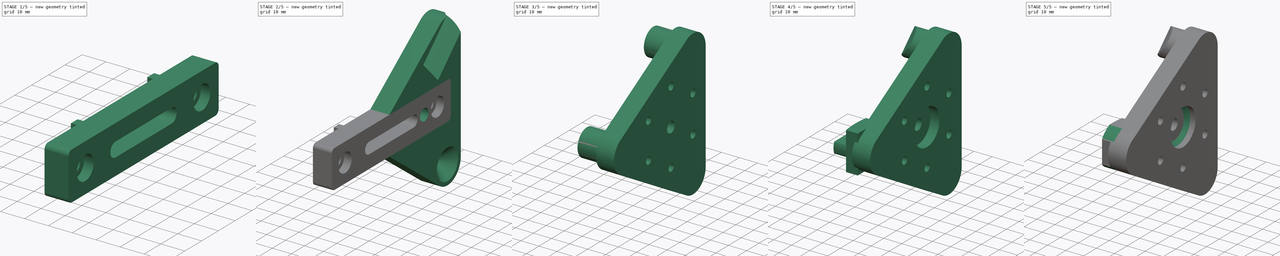
[diagram: build sequence overview — one tinted view per stage of 5, left to right]
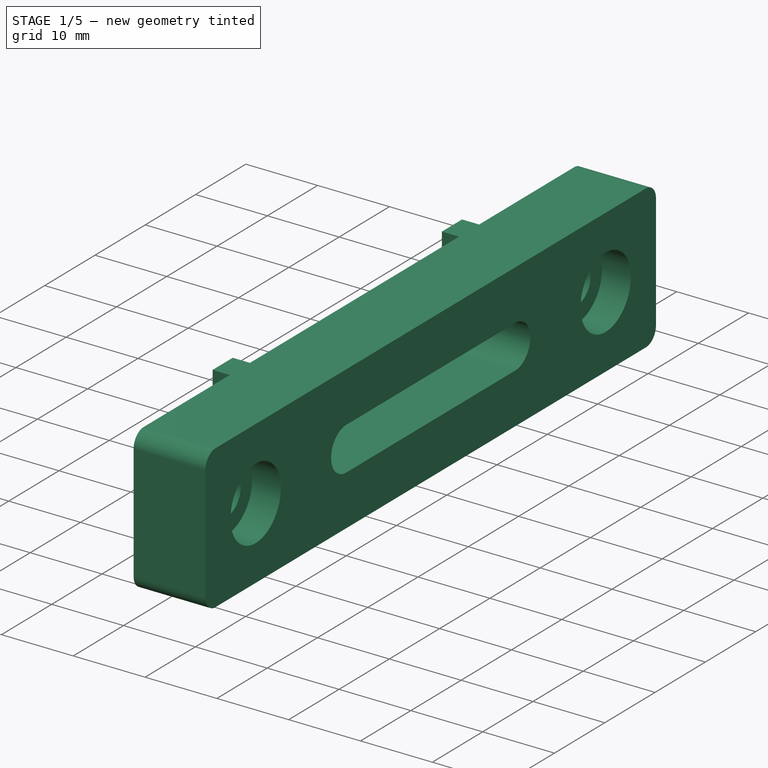
[diagram: stage 1 of 5 — iso view after this stage's code; geometry added in this stage tinted green]
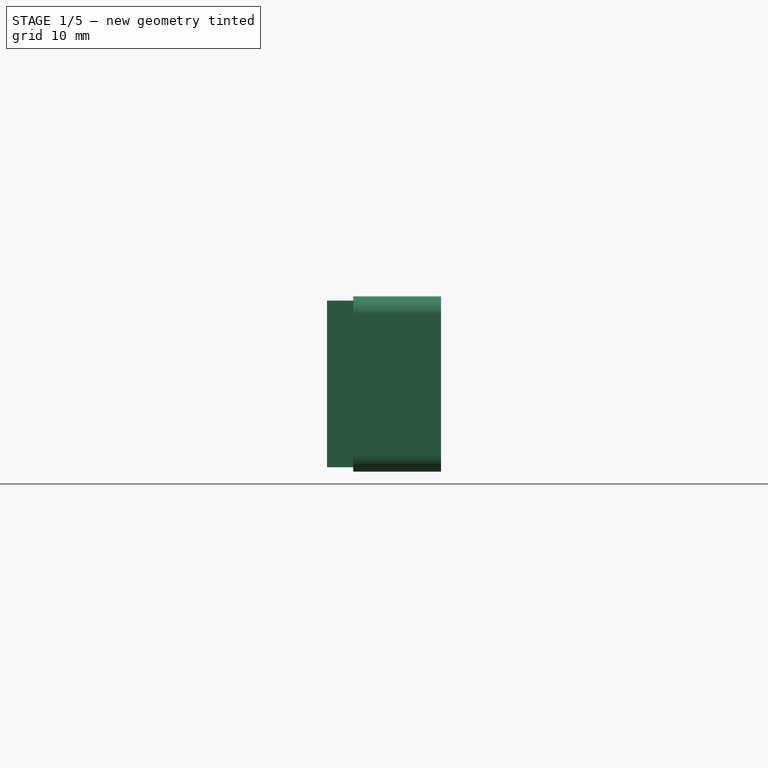
[diagram: stage 1 of 5 — front view after this stage's code; geometry added in this stage tinted green]
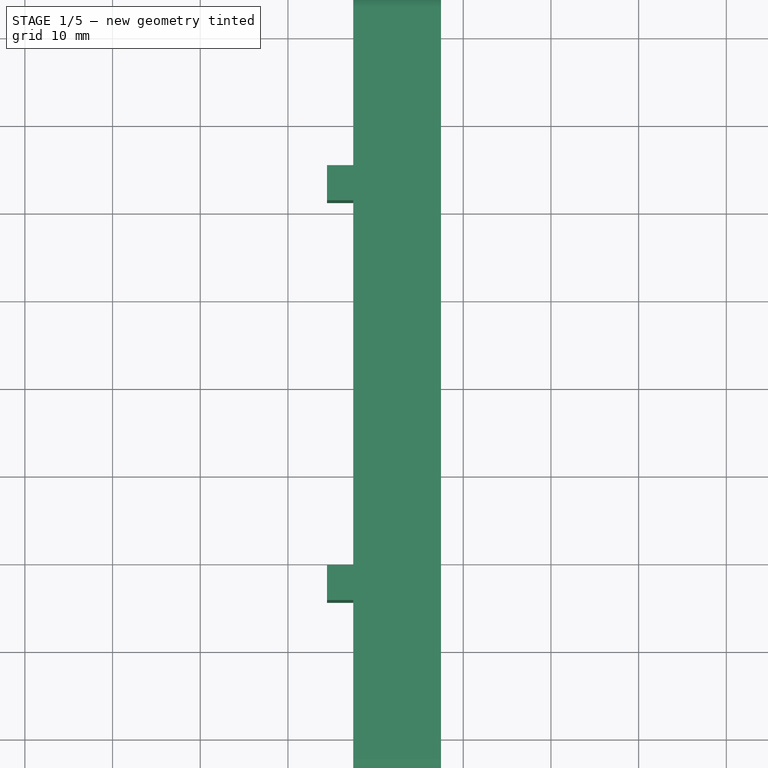
[diagram: stage 1 of 5 — top view after this stage's code; geometry added in this stage tinted green]
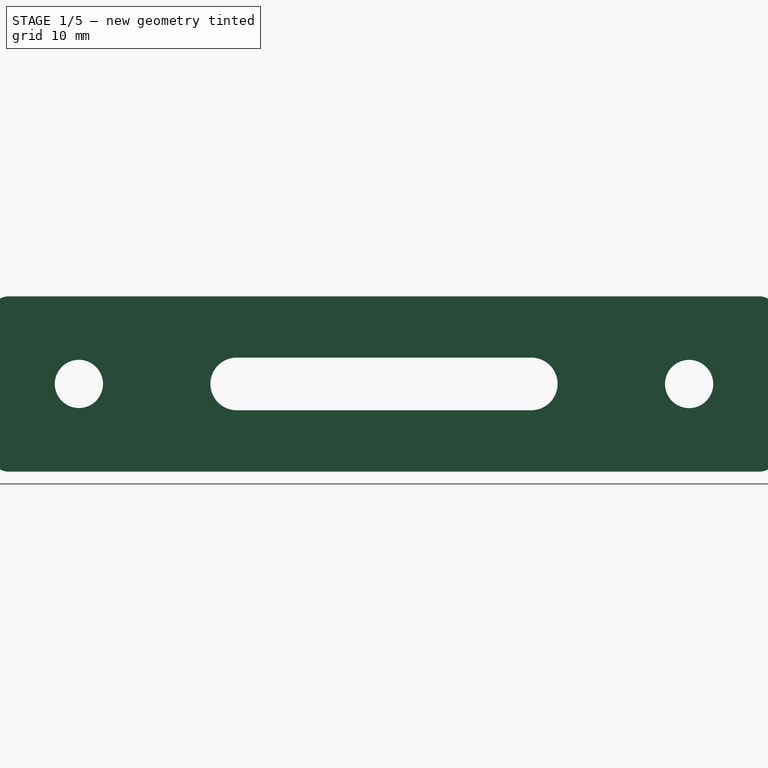
[diagram: stage 1 of 5 — right view after this stage's code; geometry added in this stage tinted green]
FCSTD DOCUMENT  (FreeCAD 0.20R29177 (Git))
Label: AP_011a_toolHolder_GA3Dtech
License: All rights reserved
LicenseURL: http://en.wikipedia.org/wiki/All_rights_reserved
objects: Sketcher::SketchObject×12, PartDesign::Pocket×8, PartDesign::Pad×6, PartDesign::Body×3, PartDesign::Fillet×2, PartDesign::Line×2, PartDesign::Plane×2, PartDesign::SubShapeBinder×1, PartDesign::Hole×1, PartDesign::Groove×1, PartDesign::ShapeBinder×1, Part::Cut×1, PartDesign::FeatureBase×1, PartDesign::Chamfer×1
note: 61 computed .brp shape members not serialized (recipe doc carries the construction recipe); baked Part::Feature solids carry a one-line shape summary decoded from their .brp

FEATURE [PartDesign::SubShapeBinder] Binder
  BindCopyOnChange = 0
  BindMode = 2
  ClaimChildren = false
  Context = -> Body [Binder.]
  Fuse = false
  MakeFace = true
  OffsetFill = false
  OffsetIntersection = false
  OffsetJoinType = 0
  OffsetOpenResult = false
  PartialLoad = false
  Refine = true
  Relative = true
  _Version = 2
FEATURE [Sketcher::SketchObject] Sketch
  ExternalGeometry = -> [Binder]
  FullyConstrained = true
  MapMode = 5
  Placement = pos=(237.459,0,0) rot=(0.57735,0.57735,0.57735;2.0944rad)
  Support = -> [Binder]
  sketch-geometry (8):
    g0: LineSegment StartX=45.225 StartY=199.849 StartZ=0 EndX=-44.3729 EndY=199.849 EndZ=0
    g1: LineSegment StartX=-44.3729 StartY=199.849 StartZ=0 EndX=-44.3729 EndY=179.849 EndZ=0
    g2: LineSegment StartX=-44.3729 StartY=179.849 StartZ=0 EndX=45.225 EndY=179.849 EndZ=0
    g3: LineSegment StartX=45.225 StartY=179.849 StartZ=0 EndX=45.225 EndY=199.849 EndZ=0
    g4: ArcOfCircle CenterX=-16.3729 CenterY=189.858 CenterZ=0 NormalX=0 NormalY=0 NormalZ=1 AngleXU=0 Radius=3 StartAngle=1.5708 EndAngle=4.71239
    g5: ArcOfCircle CenterX=17.225 CenterY=189.858 CenterZ=0 NormalX=0 NormalY=0 NormalZ=1 AngleXU=0 Radius=3 StartAngle=4.71239 EndAngle=7.85398
    g6: LineSegment StartX=-16.3729 StartY=186.858 StartZ=0 EndX=17.225 EndY=186.858 EndZ=0
    g7: LineSegment StartX=-16.3729 StartY=192.858 StartZ=0 EndX=17.225 EndY=192.858 EndZ=0
  constraints (22):
    c: Coincident(g0,g1)
    c: Coincident(g1,g2)
    c: Coincident(g2,g3)
    c: Coincident(g3,g0)
    c: Horizontal(g0)
    c: Horizontal(g2)
    c: Vertical(g1)
    c: Vertical(g3)
    c: Vertical(g1,g-3)
    c: Horizontal(g-6,g0)
    c: Horizontal(g2,g-4)
    c: Vertical(g-5,g0)
    c: Tangent(g4,g7) = 1.5708
    c: Tangent(g4,g6) = -1.5708
    c: Tangent(g6,g5) = -1.5708
    c: Tangent(g7,g5) = 1.5708
    c: Horizontal(g6)
    c: Equal(g4,g5)
    c: Horizontal(g4,g-7)
    c: Radius(g5) = 3
    c: DistanceX(g-7,g4) = 18
    c: DistanceX(g5,g-8) = 18
FEATURE [PartDesign::Pad] Pad
  Direction = (1,1,1)
  Length = 10
  Length2 = 100
  Profile = -> Sketch
  Type = 0
FEATURE [Sketcher::SketchObject] Sketch001
  ExternalGeometry = -> [Binder]
  FullyConstrained = true
  MapMode = 5
  Placement = pos=(237.459,0,0) rot=(0.57735,-0.57735,-0.57735;2.0944rad)
  Support = -> [Pad]
  sketch-geometry (8):
    g0: LineSegment StartX=-25.225 StartY=199.349 StartZ=0 EndX=-21.225 EndY=199.349 EndZ=0
    g1: LineSegment StartX=-21.225 StartY=199.349 StartZ=0 EndX=-21.225 EndY=180.349 EndZ=0
    g2: LineSegment StartX=-21.225 StartY=180.349 StartZ=0 EndX=-25.225 EndY=180.349 EndZ=0
    g3: LineSegment StartX=-25.225 StartY=180.349 StartZ=0 EndX=-25.225 EndY=199.349 EndZ=0
    g4: LineSegment StartX=24.3729 StartY=199.358 StartZ=0 EndX=20.3729 EndY=199.358 EndZ=0
    g5: LineSegment StartX=20.3729 StartY=199.358 StartZ=0 EndX=20.3729 EndY=180.358 EndZ=0
    g6: LineSegment StartX=20.3729 StartY=180.358 StartZ=0 EndX=24.3729 EndY=180.358 EndZ=0
    g7: LineSegment StartX=24.3729 StartY=180.358 StartZ=0 EndX=24.3729 EndY=199.358 EndZ=0
  constraints (20):
    c: Coincident(g0,g1)
    c: Coincident(g1,g2)
    c: Coincident(g2,g3)
    c: Coincident(g3,g0)
    c: Horizontal(g0)
    c: Horizontal(g2)
    c: Vertical(g1)
    c: Coincident(g0,g-3)
    c: Coincident(g-5,g2)
    c: DistanceX(g0,g0) = 4
    c: Coincident(g4,g5)
    c: Coincident(g5,g6)
    c: Coincident(g6,g7)
    c: Coincident(g7,g4)
    c: Horizontal(g4)
    c: Horizontal(g6)
    c: Vertical(g5)
    c: Coincident(g4,g-4)
    c: Coincident(g6,g-6)
    c: DistanceX(g6,g6) = 4
FEATURE [PartDesign::Pad] Pad001
  BaseFeature = -> Pad
  Direction = (1,1,1)
  Length = 3
  Length2 = 100
  Profile = -> Sketch001
  Type = 0
FEATURE [Sketcher::SketchObject] Sketch002
  ExternalGeometry = -> [Binder]
  FullyConstrained = false
  MapMode = 5
  Placement = pos=(247.459,0,0) rot=(0.57735,0.57735,0.57735;2.0944rad)
  Support = -> [Pad001]
  sketch-geometry (2):
    g0: Circle CenterX=-34.3729 CenterY=189.858 CenterZ=0 NormalX=0 NormalY=0 NormalZ=1 AngleXU=0 Radius=3.81493
    g1: Circle CenterX=35.225 CenterY=189.849 CenterZ=0 NormalX=0 NormalY=0 NormalZ=1 AngleXU=0 Radius=3.1654
  constraints (2):
    c: Coincident(g0,g-3)
    c: Coincident(g1,g-4)
FEATURE [PartDesign::Hole] Hole
  BaseFeature = -> Pad001
  CustomThreadClearance = 0
  Depth = 25
  DepthType = 0
  Diameter = 5.5
  DrillForDepth = false
  DrillPoint = 1
  DrillPointAngle = 118
  HoleCutCountersinkAngle = 90
  HoleCutCustomValues = false
  HoleCutDepth = 4
  HoleCutDiameter = 10
  HoleCutType = 6
  ModelThread = false
  Profile = -> Sketch002
  Tapered = false
  TaperedAngle = 90
  ThreadClass = 0
  ThreadDepth = 23.5
  ThreadDepthType = 0
  ThreadDirection = 0
  ThreadFit = 0
  ThreadSize = 13
  ThreadType = 1
  Threaded = false
  UseCustomThreadClearance = false
FEATURE [PartDesign::Fillet] Fillet
  Base = -> Hole [Edge1,Edge5,Edge2,Edge8]
  BaseFeature = -> Hole
  Radius = 2
  SupportTransform = false
  UseAllEdges = false
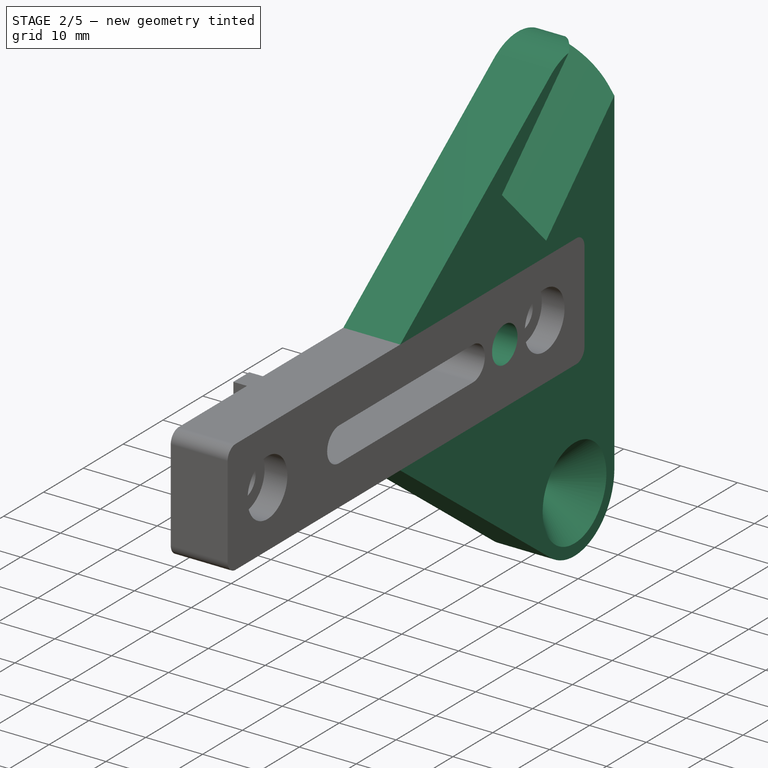
[diagram: stage 2 of 5 — iso view after this stage's code; geometry added in this stage tinted green]
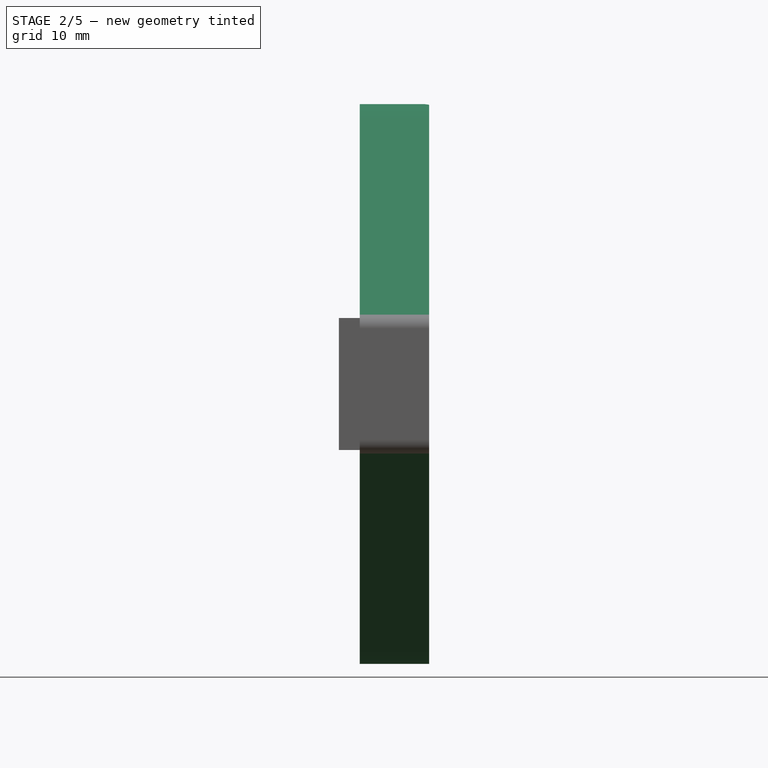
[diagram: stage 2 of 5 — front view after this stage's code; geometry added in this stage tinted green]
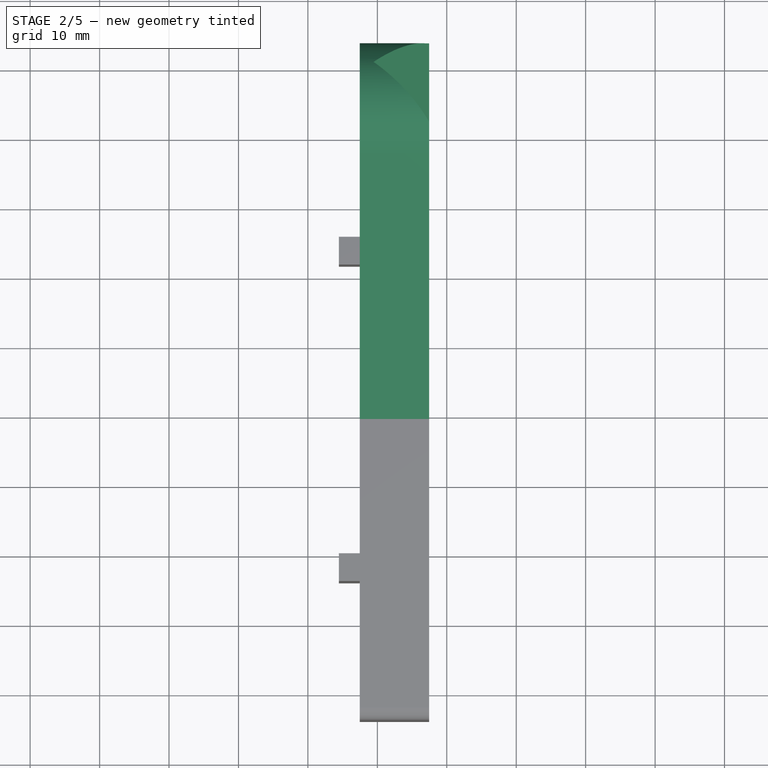
[diagram: stage 2 of 5 — top view after this stage's code; geometry added in this stage tinted green]
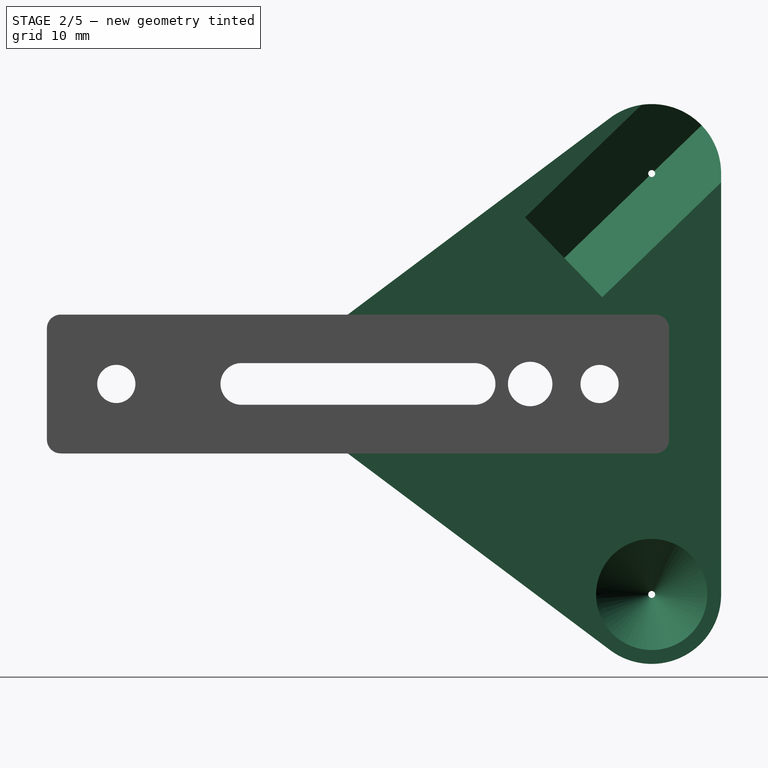
[diagram: stage 2 of 5 — right view after this stage's code; geometry added in this stage tinted green]
FEATURE [Sketcher::SketchObject] Sketch003
  ExternalGeometry = -> [Binder]
  FullyConstrained = true
  MapMode = 5
  Placement = pos=(247.459,0,0) rot=(0.57735,0.57735,0.57735;2.0944rad)
  Support = -> [Fillet]
  sketch-geometry (1):
    g0: Circle CenterX=25.225 CenterY=189.849 CenterZ=0 NormalX=0 NormalY=0 NormalZ=1 AngleXU=0 Radius=3.2
  constraints (3):
    c: Diameter(g0) = 6.4
    c: Horizontal(g0,g-3)
    c: DistanceX(g0,g-3) = 10
FEATURE [PartDesign::Pocket] Pocket
  BaseFeature = -> Fillet
  Direction = (-1,0,0)
  Length = 5
  Length2 = 100
  Profile = -> Sketch003
  ReferenceAxis = -> Sketch003 [N_Axis]
  Type = 1
FEATURE [Sketcher::SketchObject] Sketch004
  ExternalGeometry = -> [Pocket]
  FullyConstrained = false
  MapMode = 5
  Placement = pos=(247.459,0,0) rot=(0.57735,0.57735,0.57735;2.0944rad)
  Support = -> [Pocket]
  sketch-geometry (14):
    g0: LineSegment StartX=42.725 StartY=220.16 StartZ=0 EndX=-9.77498 EndY=189.849 EndZ=0
    g1: LineSegment StartX=-9.77498 StartY=189.849 StartZ=0 EndX=42.725 EndY=159.538 EndZ=0
    g2: LineSegment StartX=42.725 StartY=159.538 StartZ=0 EndX=42.725 EndY=220.16 EndZ=0
    g3: Circle CenterX=25.225 CenterY=189.849 CenterZ=0 NormalX=0 NormalY=0 NormalZ=1 AngleXU=0 Radius=35
    g4: ArcOfCircle CenterX=42.725 CenterY=220.16 CenterZ=0 NormalX=0 NormalY=0 NormalZ=1 AngleXU=0 Radius=10 StartAngle=3e-16 EndAngle=2.2141
    g5: ArcOfCircle CenterX=42.725 CenterY=159.538 CenterZ=0 NormalX=0 NormalY=0 NormalZ=1 AngleXU=0 Radius=10 StartAngle=4.06908 EndAngle=6.28319
    g6: LineSegment StartX=52.725 StartY=159.538 StartZ=0 EndX=52.725 EndY=220.16 EndZ=0
    g7: LineSegment StartX=36.7266 StartY=228.161 StartZ=0 EndX=-1.03816 EndY=199.849 EndZ=0
    g8: LineSegment StartX=-1.03816 StartY=179.849 StartZ=0 EndX=36.7266 EndY=151.537 EndZ=0
    g9: LineSegment StartX=-1.03816 StartY=179.849 StartZ=0 EndX=43.225 EndY=179.849 EndZ=0
    g10: LineSegment StartX=43.225 StartY=179.849 StartZ=0 EndX=43.225 EndY=199.849 EndZ=0
    g11: LineSegment StartX=43.225 StartY=199.849 StartZ=0 EndX=-1.03816 EndY=199.849 EndZ=0
    g12: Circle CenterX=42.725 CenterY=220.16 CenterZ=0 NormalX=0 NormalY=0 NormalZ=1 AngleXU=0 Radius=0.5
    g13: Circle CenterX=42.725 CenterY=159.538 CenterZ=0 NormalX=0 NormalY=0 NormalZ=1 AngleXU=0 Radius=0.5
  constraints (32):
    c: Coincident(g0,g1)
    c: Coincident(g1,g2)
    c: Coincident(g2,g0)
    c: Equal(g0,g1)
    c: Equal(g0,g2)
    c: PointOnObject(g0,g3)
    c: PointOnObject(g1,g3)
    c: PointOnObject(g2,g3)
    c: Coincident(g3,g-3)
    c: Horizontal(g0,g3)
    c: Diameter(g3) = 70
    c: Tangent(g5,g6) = -1.5708
    c: Tangent(g6,g4) = -1.5708
    c: Equal(g4,g5)
    c: Coincident(g4,g0)
    c: Coincident(g5,g1)
    c: PointOnObject(g7,g-5)
    c: Tangent(g7,g4) = -1.5708
    c: PointOnObject(g8,g-6)
    c: Tangent(g8,g5) = -1.5708
    c: Diameter(g5) = 20
    c: Coincident(g8,g9)
    c: Coincident(g9,g-6)
    c: Coincident(g9,g10)
    c: Coincident(g10,g-5)
    c: Coincident(g10,g11)
    c: Coincident(g11,g7)
    c: Coincident(g12,g4)
    c: Coincident(g13,g5)
    c: Equal(g13,g12)
    c: Diameter(g12) = 1
    c: Vertical(g8,g7)
FEATURE [PartDesign::Pad] Pad002
  BaseFeature = -> Pocket
  Direction = (1,0,0)
  Length = 10
  Length2 = 100
  Profile = -> Sketch004
  ReferenceAxis = -> Sketch004 [N_Axis]
  Reversed = true
  Type = 0
FEATURE [PartDesign::Line] DatumLine
  AttacherType = Attacher::AttachEngineLine
  Length = 20
  MapMode = 19
  Placement = pos=(247.459,42.725,159.538) rot=(0.57735,0.57735,0.57735;2.0944rad)
  ResizeMode = 0
  Support = -> [Pad002]
FEATURE [PartDesign::Line] DatumLine001
  AttacherType = Attacher::AttachEngineLine
  Length = 20
  MapMode = 19
  Placement = pos=(247.459,42.725,220.16) rot=(0.57735,0.57735,0.57735;2.0944rad)
  ResizeMode = 0
  Support = -> [Pad002]
FEATURE [PartDesign::Plane] DatumPlane
  AttachmentOffset = pos=(0,0,0) rot=(0,1,0;0.767945rad)
  Length = 303.262
  MapMode = 4
  Placement = pos=(247.459,42.725,220.16) rot=(0.363936,0.363936,0.85738;4.55912rad)
  ResizeMode = 0
  Support = -> [DatumLine001]
  Width = 324.757
FEATURE [PartDesign::Plane] DatumPlane001
  Length = 307.844
  MapMode = 4
  Placement = pos=(247.459,42.725,159.538) rot=(0.57735,0.57735,0.57735;4.18879rad)
  ResizeMode = 0
  Support = -> [DatumLine]
  Width = 325.188
FEATURE [Sketcher::SketchObject] Sketch005
  ExternalGeometry = -> [Pad002]
  FullyConstrained = false
  MapMode = 5
  Placement = pos=(247.459,42.725,159.538) rot=(0.57735,0.57735,0.57735;4.18879rad)
  Support = -> [DatumPlane001]
  sketch-geometry (3):
    g0: LineSegment StartX=0 StartY=21.8513 StartZ=0 EndX=0 EndY=-8 EndZ=0
    g1: LineSegment StartX=0 StartY=-8 StartZ=0 EndX=-29.8513 EndY=21.8513 EndZ=0
    g2: LineSegment StartX=-29.8513 StartY=21.8513 StartZ=0 EndX=0 EndY=21.8513 EndZ=0
  constraints (8):
    c: PointOnObject(g0,g-2)
    c: PointOnObject(g0,g-2)
    c: Coincident(g0,g1)
    c: Coincident(g1,g2)
    c: Horizontal(g2)
    c: Angle(g-2,g1) = 0.785398
    c: Coincident(g0,g2)
    c: DistanceY(g-3,g0) = 2
FEATURE [PartDesign::Groove] Groove
  Angle = 360
  Axis = (1,-2e-16,-2e-16)
  Base = (247.459,42.725,159.538)
  BaseFeature = -> Pad002
  Profile = -> Sketch005
  ReferenceAxis = -> Sketch005 [V_Axis]
  Reversed = true
FEATURE [Sketcher::SketchObject] Sketch006
  ExternalGeometry = -> [Groove]
  FullyConstrained = false
  MapMode = 5
  Placement = pos=(247.459,42.725,220.16) rot=(-0.363936,-0.363936,-0.85738;1.72407rad)
  Support = -> [DatumPlane]
  sketch-geometry (3):
    g0: LineSegment StartX=0 StartY=-8 StartZ=0 EndX=12.3958 EndY=4.19245 EndZ=0
    g1: LineSegment StartX=12.3958 StartY=4.19245 StartZ=0 EndX=-11.9924 EndY=4.19245 EndZ=0
    g2: LineSegment StartX=-11.9924 StartY=4.19245 StartZ=0 EndX=0 EndY=-8 EndZ=0
  constraints (7):
    c: PointOnObject(g0,g-2)
    c: Coincident(g0,g1)
    c: Horizontal(g1)
    c: Coincident(g1,g2)
    c: Coincident(g2,g0)
    c: Angle(g0,g2) = 1.5708
    c: DistanceY(g-3,g0) = 2
FEATURE [PartDesign::Pocket] Pocket001
  BaseFeature = -> Groove
  Direction = (-3e-16,-0.71934,-0.694658)
  Length = 35
  Length2 = 100
  Midplane = true
  Profile = -> Sketch006
  ReferenceAxis = -> Sketch006 [N_Axis]
  Type = 0
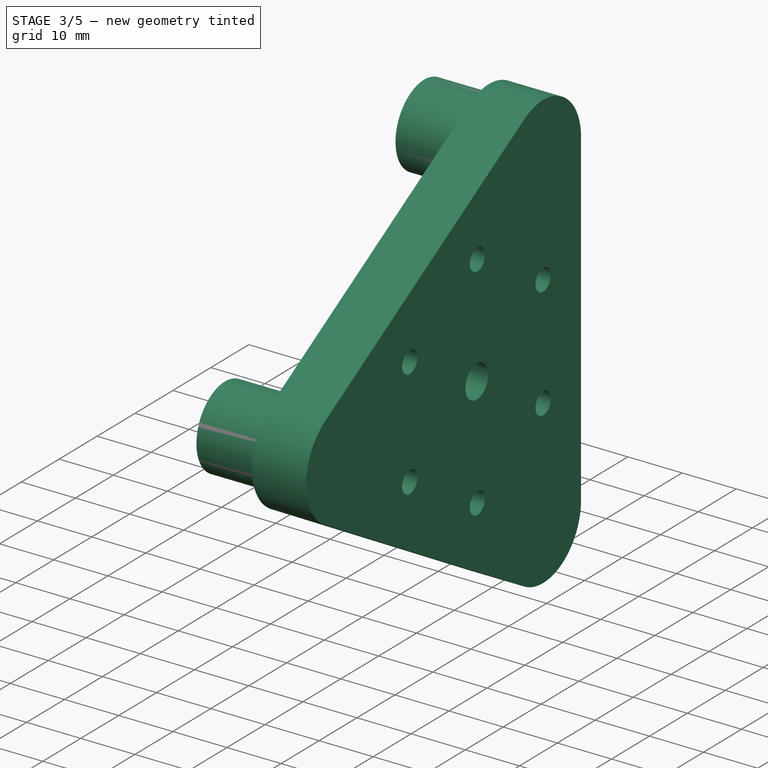
[diagram: stage 3 of 5 — iso view after this stage's code; geometry added in this stage tinted green]
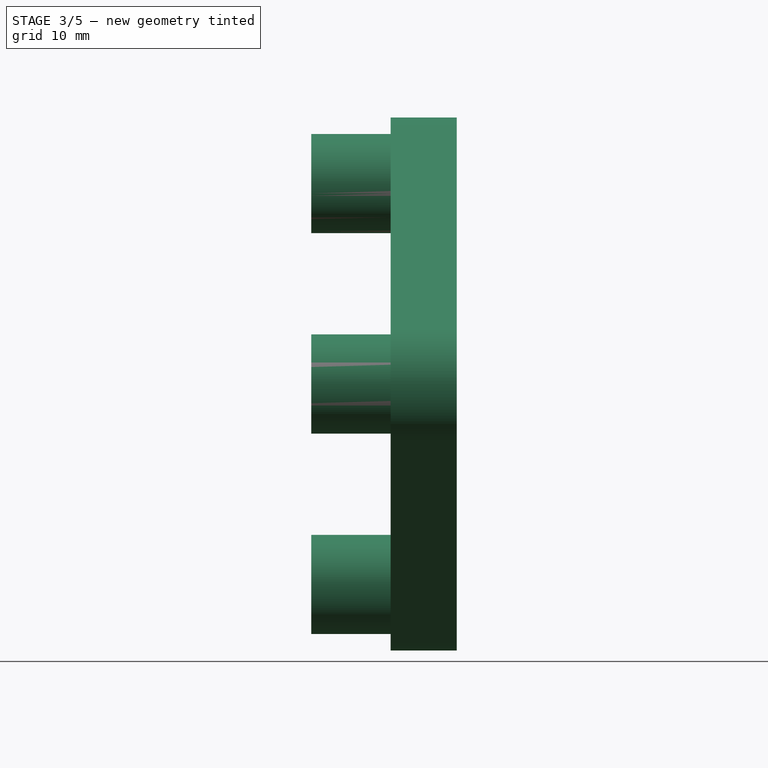
[diagram: stage 3 of 5 — front view after this stage's code; geometry added in this stage tinted green]
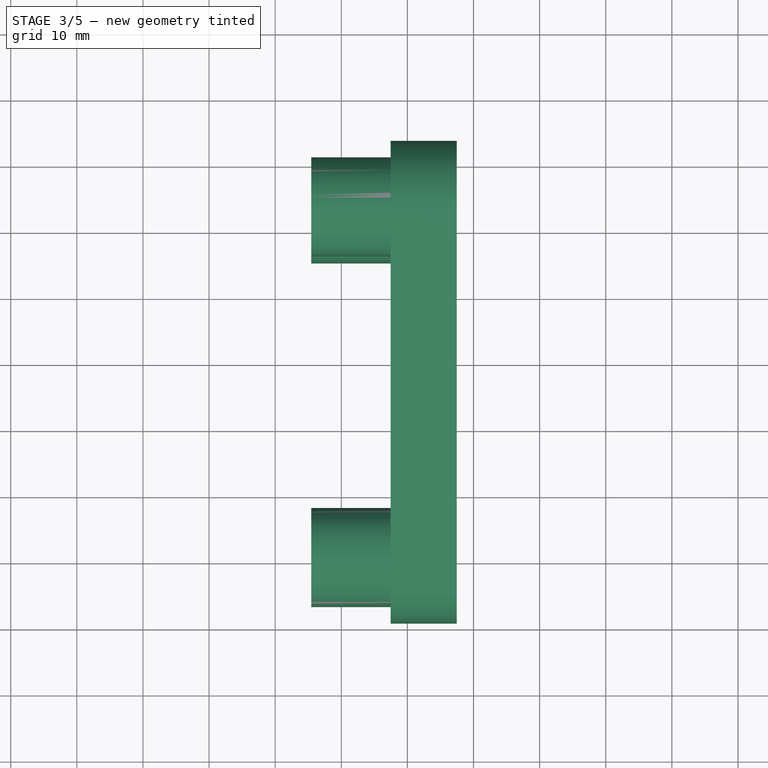
[diagram: stage 3 of 5 — top view after this stage's code; geometry added in this stage tinted green]
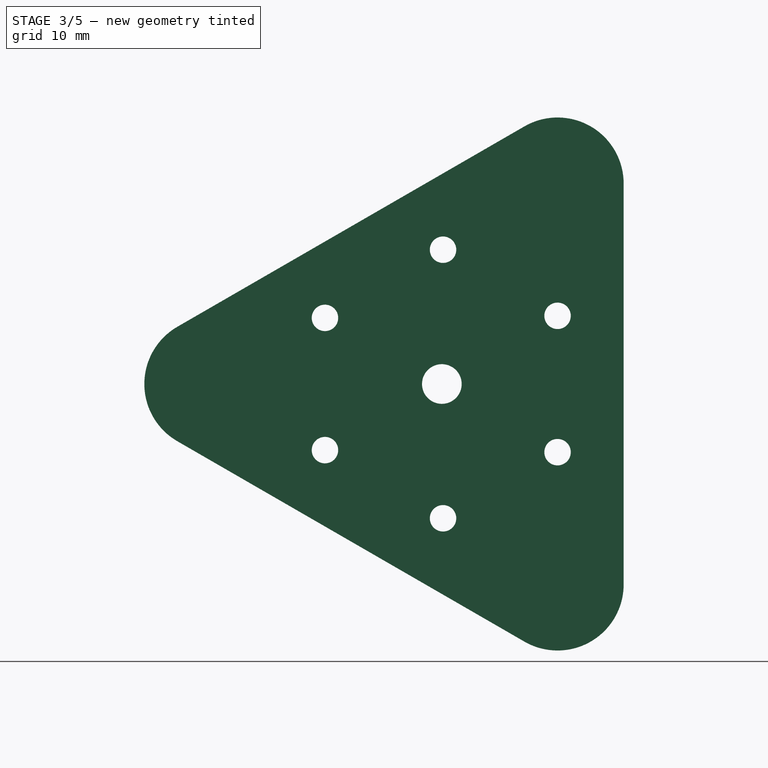
[diagram: stage 3 of 5 — right view after this stage's code; geometry added in this stage tinted green]
FEATURE [PartDesign::Fillet] Fillet001
  Base = -> Pocket001 [Edge36,Edge46]
  BaseFeature = -> Pocket001
  Radius = 15
  SupportTransform = false
  UseAllEdges = false
FEATURE [PartDesign::Pocket] Pocket002
  BaseFeature = -> Fillet001
  Direction = (1,0,0)
  Length = 3
  Length2 = 100
  Profile = -> Fillet001 [Face36]
  Type = 0
FEATURE [PartDesign::Pocket] Pocket003
  BaseFeature = -> Pocket002
  Direction = (1,0,0)
  Length = 3
  Length2 = 100
  Profile = -> Pocket002 [Face32]
  Type = 0
FEATURE [PartDesign::Body] Body
  Group = -> [Binder,Sketch,Pad,Sketch001,Pad001,Sketch002,Hole,Fillet,Sketch003,Pocket,Sketch004,Pad002,DatumLine,DatumLine001,DatumPlane,DatumPlane001,Sketch005,Groove,Sketch006,Pocket001,Fillet001,Pocket002,Pocket003]
  Origin = -> Origin
  Placement = pos=(-253.7,0,-183.9) rot=(0,0,1;0rad)
  Tip = -> Pocket003
FEATURE [PartDesign::ShapeBinder] ShapeBinder
  Support = -> [Pocket003]
  TraceSupport = false
FEATURE [Sketcher::SketchObject] Sketch007
  ExternalGeometry = -> [ShapeBinder]
  FullyConstrained = true
  MapMode = 5
  Placement = pos=(247.459,0,0) rot=(0.57735,0.57735,0.57735;2.0944rad)
  Support = -> [ShapeBinder]
  sketch-geometry (21):
    g0: LineSegment StartX=42.725 StartY=159.538 StartZ=0 EndX=42.725 EndY=220.16 EndZ=0
    g1: LineSegment StartX=42.725 StartY=220.16 StartZ=0 EndX=-9.77498 EndY=189.849 EndZ=0
    g2: LineSegment StartX=-9.77498 StartY=189.849 StartZ=0 EndX=42.725 EndY=159.538 EndZ=0
    g3: Circle CenterX=25.225 CenterY=189.849 CenterZ=0 NormalX=0 NormalY=0 NormalZ=1 AngleXU=0 Radius=35
    g4: LineSegment StartX=52.725 StartY=159.538 StartZ=0 EndX=52.725 EndY=220.16 EndZ=0
    g5: LineSegment StartX=37.725 StartY=228.82 StartZ=0 EndX=-14.775 EndY=198.509 EndZ=0
    g6: LineSegment StartX=-14.775 StartY=181.189 StartZ=0 EndX=37.725 EndY=150.878 EndZ=0
    g7: Circle CenterX=25.225 CenterY=189.849 CenterZ=0 NormalX=0 NormalY=0 NormalZ=1 AngleXU=0 Radius=55
    g8: ArcOfCircle CenterX=42.725 CenterY=220.16 CenterZ=0 NormalX=0 NormalY=0 NormalZ=1 AngleXU=0 Radius=10 StartAngle=-9e-16 EndAngle=2.0944
    g9: GeomPoint X=52.725 Y=237.48 Z=0
    g10: ArcOfCircle CenterX=42.725 CenterY=159.538 CenterZ=0 NormalX=0 NormalY=0 NormalZ=1 AngleXU=0 Radius=10 StartAngle=4.18879 EndAngle=6.28319
    g11: GeomPoint X=52.725 Y=142.217 Z=0
    g12: ArcOfCircle CenterX=-9.77498 CenterY=189.849 CenterZ=0 NormalX=0 NormalY=0 NormalZ=1 AngleXU=0 Radius=10 StartAngle=2.0944 EndAngle=4.18879
    g13: GeomPoint X=-29.775 Y=189.849 Z=0
    g14: Circle CenterX=25.225 CenterY=189.849 CenterZ=0 NormalX=0 NormalY=0 NormalZ=1 AngleXU=0 Radius=3
    g15: Circle CenterX=42.725 CenterY=200.16 CenterZ=0 NormalX=0 NormalY=0 NormalZ=1 AngleXU=0 Radius=2
    g16: Circle CenterX=42.725 CenterY=179.538 CenterZ=0 NormalX=0 NormalY=0 NormalZ=1 AngleXU=0 Radius=2
    g17: Circle CenterX=25.4045 CenterY=169.538 CenterZ=0 NormalX=0 NormalY=0 NormalZ=1 AngleXU=0 Radius=2
    g18: Circle CenterX=7.54553 CenterY=179.849 CenterZ=0 NormalX=0 NormalY=0 NormalZ=1 AngleXU=0 Radius=2
    g19: Circle CenterX=7.54553 CenterY=199.849 CenterZ=0 NormalX=0 NormalY=0 NormalZ=1 AngleXU=0 Radius=2
    g20: Circle CenterX=25.4045 CenterY=210.16 CenterZ=0 NormalX=0 NormalY=0 NormalZ=1 AngleXU=0 Radius=2
  constraints (52):
    c: Coincident(g0,g1)
    c: Coincident(g1,g2)
    c: Coincident(g2,g0)
    c: Equal(g0,g1)
    c: Equal(g0,g2)
    c: PointOnObject(g0,g3)
    c: PointOnObject(g1,g3)
    c: PointOnObject(g2,g3)
    c: Coincident(g3,g-3)
    c: Vertical(g0)
    c: Diameter(g3) = 70
    c: PointOnObject(g9,g7)
    c: PointOnObject(g13,g7)
    c: PointOnObject(g11,g7)
    c: PointOnObject(g9,g5)
    c: PointOnObject(g9,g4)
    c: Tangent(g5,g8) = -1.5708
    c: Tangent(g4,g8) = -1.5708
    c: PointOnObject(g11,g6)
    c: PointOnObject(g11,g4)
    c: Tangent(g6,g10) = -1.5708
    c: Tangent(g4,g10) = -1.5708
    c: PointOnObject(g13,g6)
    c: PointOnObject(g13,g5)
    c: Tangent(g6,g12) = -1.5708
    c: Tangent(g5,g12) = -1.5708
    c: Equal(g12,g8)
    c: Equal(g8,g10)
    c: Diameter(g8) = 20
    c: Coincident(g8,g0)
    c: Coincident(g12,g1)
    c: Coincident(g10,g0)
    c: Coincident(g14,g3)
    c: Diameter(g14) = 6
    c: PointOnObject(g15,g0)
    c: PointOnObject(g16,g0)
    c: PointOnObject(g17,g2)
    c: PointOnObject(g18,g2)
    c: PointOnObject(g19,g1)
    c: PointOnObject(g20,g1)
    c: Equal(g19,g18)
    c: Equal(g18,g17)
    c: Equal(g17,g16)
    c: Equal(g16,g15)
    c: Equal(g15,g20)
    c: Diameter(g20) = 4
    c: Distance(g20,g8) = 20
    c: Distance(g12,g19) = 20
    c: Distance(g12,g18) = 20
    c: Distance(g17,g10) = 20
    c: Distance(g10,g16) = 20
    c: Distance(g15,g8) = 20
FEATURE [PartDesign::Pad] Pad003
  Direction = (1,0,0)
  Length = 10
  Length2 = 100
  Profile = -> Sketch007
  ReferenceAxis = -> Sketch007 [N_Axis]
  Type = 0
FEATURE [Sketcher::SketchObject] Sketch008
  ExternalGeometry = -> [Pad003]
  FullyConstrained = true
  MapMode = 5
  Placement = pos=(247.459,0,0) rot=(0.57735,-0.57735,-0.57735;2.0944rad)
  Support = -> [Pad003]
  sketch-geometry (3):
    g0: Circle CenterX=-42.725 CenterY=220.16 CenterZ=0 NormalX=0 NormalY=0 NormalZ=1 AngleXU=0 Radius=7.5
    g1: Circle CenterX=9.77498 CenterY=189.849 CenterZ=0 NormalX=0 NormalY=0 NormalZ=1 AngleXU=0 Radius=7.5
    g2: Circle CenterX=-42.725 CenterY=159.538 CenterZ=0 NormalX=0 NormalY=0 NormalZ=1 AngleXU=0 Radius=7.5
  constraints (6):
    c: Coincident(g0,g-3)
    c: Coincident(g1,g-4)
    c: Coincident(g2,g-5)
    c: Equal(g2,g0)
    c: Equal(g0,g1)
    c: Diameter(g0) = 15
FEATURE [PartDesign::Pad] Pad004
  BaseFeature = -> Pad003
  Direction = (-1,0,0)
  Length = 12
  Length2 = 100
  Profile = -> Sketch008
  ReferenceAxis = -> Sketch008 [N_Axis]
  Type = 0
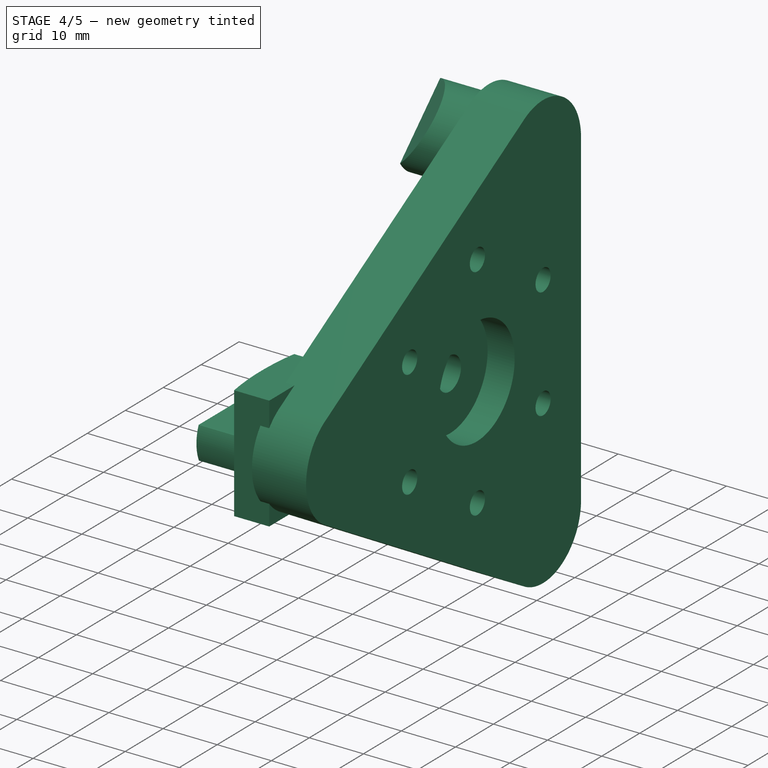
[diagram: stage 4 of 5 — iso view after this stage's code; geometry added in this stage tinted green]
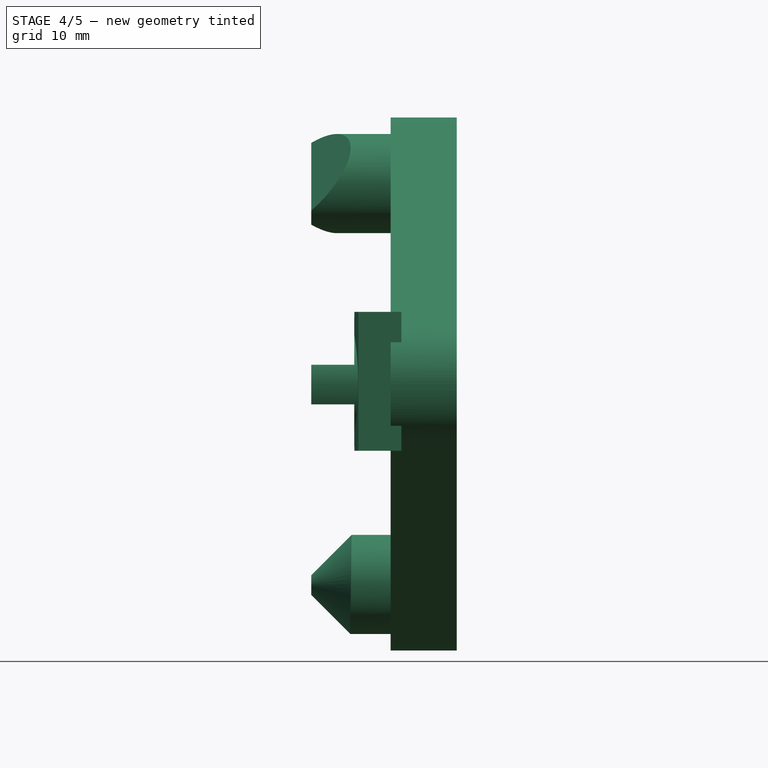
[diagram: stage 4 of 5 — front view after this stage's code; geometry added in this stage tinted green]
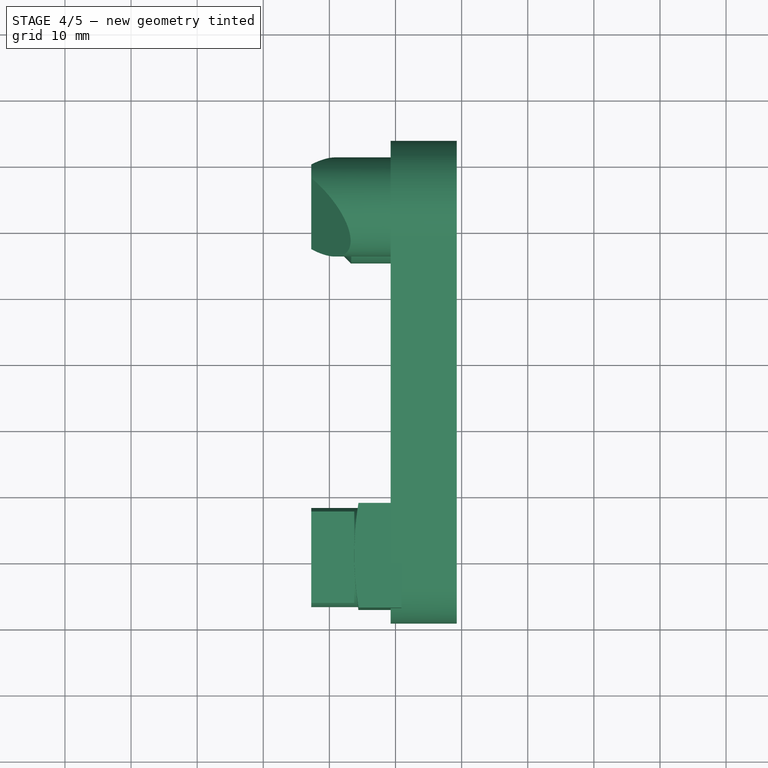
[diagram: stage 4 of 5 — top view after this stage's code; geometry added in this stage tinted green]
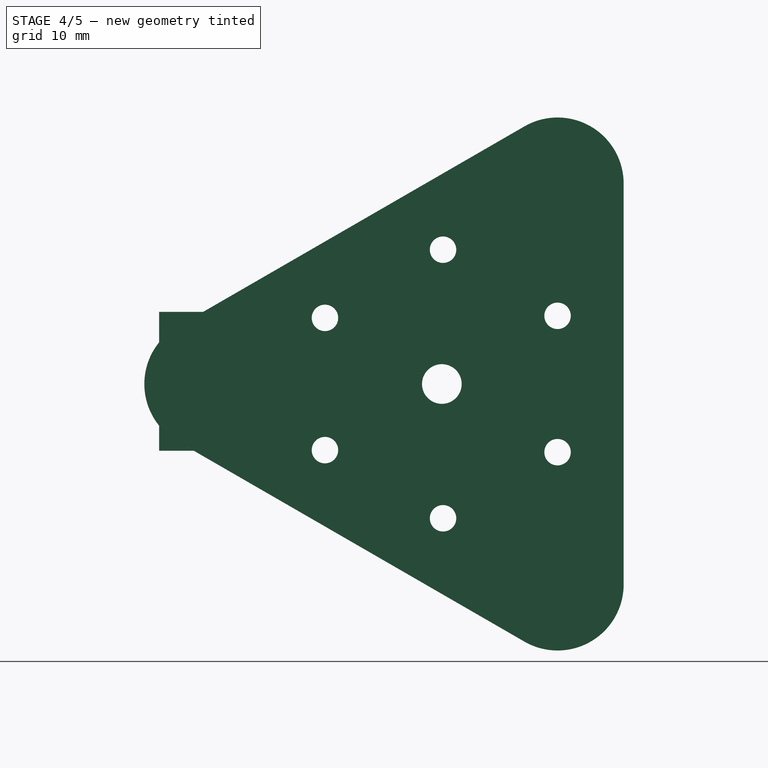
[diagram: stage 4 of 5 — right view after this stage's code; geometry added in this stage tinted green]
FEATURE [Sketcher::SketchObject] Sketch009
  ExternalGeometry = -> [Pad004]
  FullyConstrained = true
  MapMode = 5
  Placement = pos=(257.459,0,0) rot=(0.57735,0.57735,0.57735;2.0944rad)
  Support = -> [Pad004]
  sketch-geometry (1):
    g0: Circle CenterX=25.225 CenterY=189.849 CenterZ=0 NormalX=0 NormalY=0 NormalZ=1 AngleXU=0 Radius=10
  constraints (2):
    c: Coincident(g0,g-3)
    c: Diameter(g0) = 20
FEATURE [PartDesign::Pocket] Pocket004
  BaseFeature = -> Pad004
  Direction = (-1,0,0)
  Length = 5
  Length2 = 100
  Profile = -> Sketch009
  ReferenceAxis = -> Sketch009 [N_Axis]
  Type = 0
FEATURE [PartDesign::Body] Body001
  Group = -> [ShapeBinder,Sketch007,Pad003,Sketch008,Pad004,Sketch009,Pocket004]
  Origin = -> Origin001
  Placement = pos=(-248.2,0,-183.8) rot=(0,0,1;0rad)
  Tip = -> Pocket004
FEATURE [Part::Cut] Cut
  Base = -> Body001
  Tool = -> Body
FEATURE [PartDesign::FeatureBase] BaseFeature
  BaseFeature = -> Cut
FEATURE [Sketcher::SketchObject] Sketch010
  ExternalGeometry = -> [BaseFeature]
  FullyConstrained = false
  MapMode = 5
  Placement = pos=(0,0,8.95781) rot=(0,0,1;0rad)
  Support = -> [BaseFeature]
  sketch-geometry (8):
    g0: ArcOfCircle CenterX=43.7591 CenterY=-9.61749 CenterZ=0 NormalX=0 NormalY=0 NormalZ=1 AngleXU=0 Radius=50 StartAngle=2.9826 EndAngle=3.30058
    g1: LineSegment StartX=-21.483 StartY=-9.61749 StartZ=0 EndX=29.6367 EndY=-9.61749 EndZ=0
    g2: LineSegment StartX=-5.61029 StartY=-1.7015 StartZ=0 EndX=-25.5625 EndY=4.18297 EndZ=0
    g3: LineSegment StartX=-25.5625 StartY=4.18297 StartZ=0 EndX=-28.0626 EndY=-22.5942 EndZ=0
    g4: LineSegment StartX=-28.0626 StartY=-22.5942 StartZ=0 EndX=-5.61029 EndY=-17.5335 EndZ=0
    g5: LineSegment StartX=-5.61029 StartY=-1.7015 StartZ=0 EndX=0.8797 EndY=-1.7015 EndZ=0
    g6: LineSegment StartX=-5.61029 StartY=-17.5335 StartZ=0 EndX=0.8797 EndY=-17.5335 EndZ=0
    g7: LineSegment StartX=0.8797 StartY=-1.7015 StartZ=0 EndX=0.8797 EndY=-17.5335 EndZ=0
  constraints (15):
    c: Symmetric(g-4,g-4,g1)
    c: Tangent(g0,g-3)
    c: Coincident(g0,g2)
    c: Coincident(g2,g3)
    c: Coincident(g3,g4)
    c: Coincident(g4,g0)
    c: Diameter(g0) = 100
    c: Symmetric(g0,g0,g1)
    c: Coincident(g5,g0)
    c: Horizontal(g5)
    c: Coincident(g6,g0)
    c: Horizontal(g6)
    c: Coincident(g7,g5)
    c: Coincident(g7,g6)
    c: Vertical(g7)
FEATURE [PartDesign::Pad] Pad005
  BaseFeature = -> BaseFeature
  Direction = (0,0,1)
  Length = 8
  Length2 = 13
  Profile = -> Sketch010
  ReferenceAxis = -> Sketch010 [N_Axis]
  Type = 4
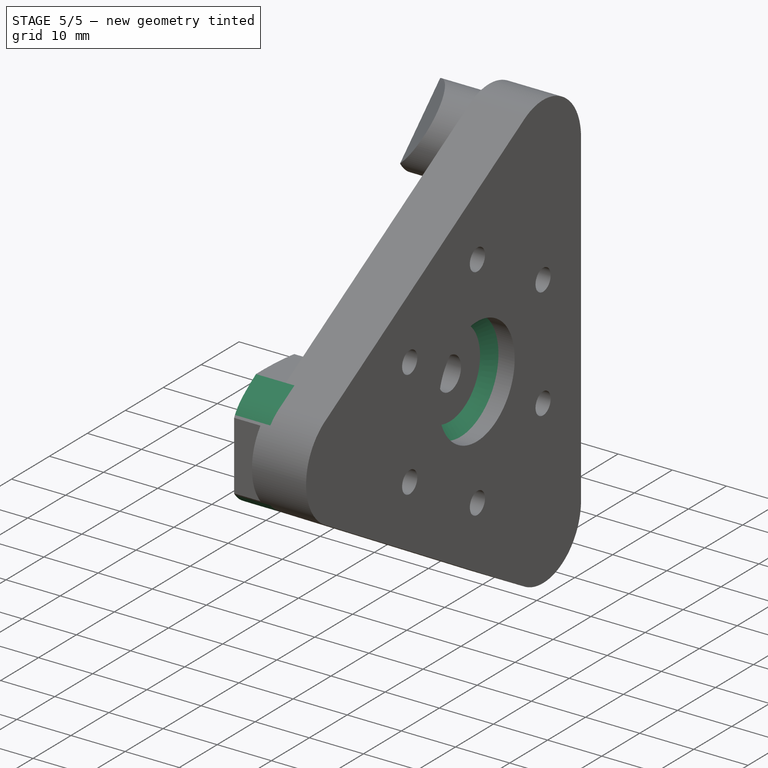
[diagram: stage 5 of 5 — iso view after this stage's code; geometry added in this stage tinted green]
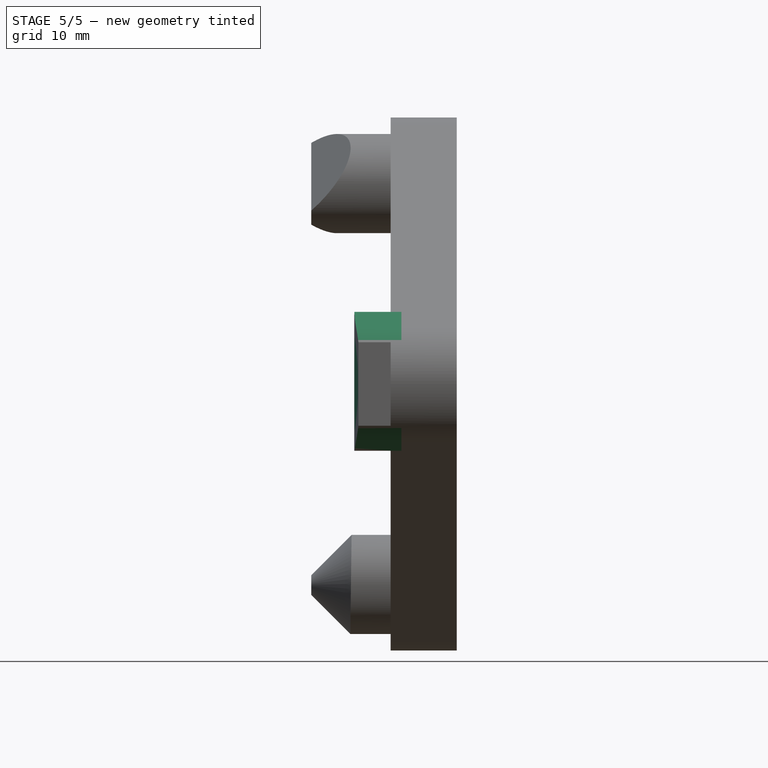
[diagram: stage 5 of 5 — front view after this stage's code; geometry added in this stage tinted green]
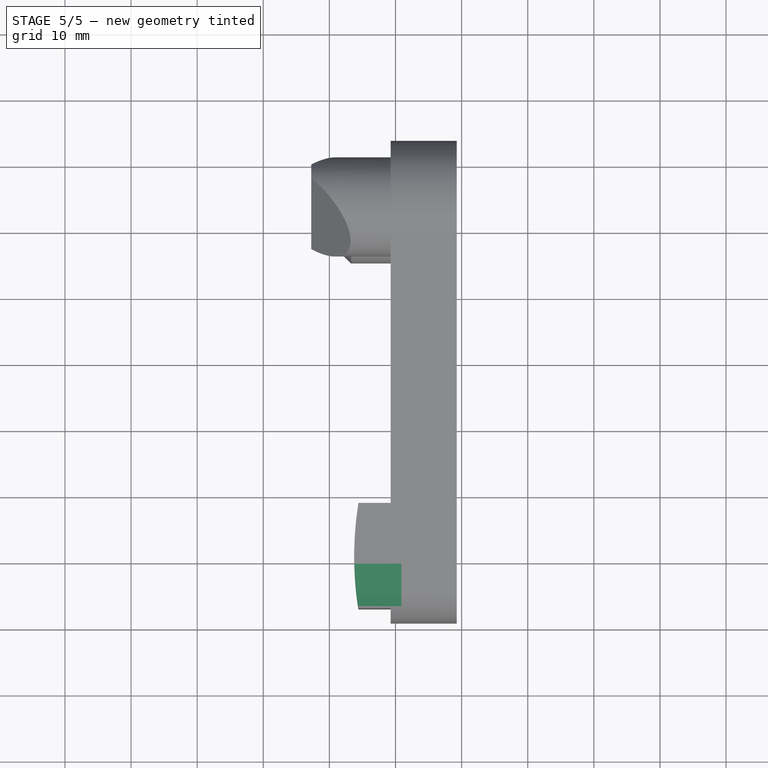
[diagram: stage 5 of 5 — top view after this stage's code; geometry added in this stage tinted green]
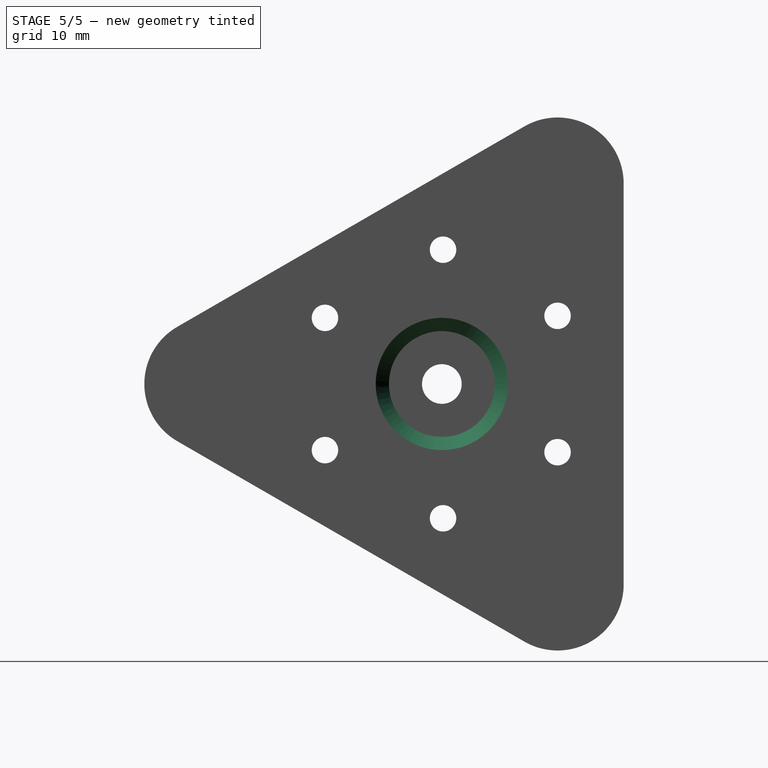
[diagram: stage 5 of 5 — right view after this stage's code; geometry added in this stage tinted green]
FEATURE [Sketcher::SketchObject] Sketch011
  ExternalGeometry = -> [BaseFeature]
  FullyConstrained = false
  MapMode = 5
  Placement = pos=(0,0,2.95781) rot=(1,0,0;3.14159rad)
  Support = -> [Pad005]
  expr: Constraints[6] = Sketch010.Constraints[6]
  sketch-geometry (8):
    g0: ArcOfCircle CenterX=43.7591 CenterY=9.61749 CenterZ=0 NormalX=0 NormalY=0 NormalZ=1 AngleXU=0 Radius=50 StartAngle=2.83573 EndAngle=3.44745
    g1: LineSegment StartX=-21.4762 StartY=9.61749 StartZ=0 EndX=29.6381 EndY=9.61749 EndZ=0
    g2: LineSegment StartX=-3.92029 StartY=24.6732 StartZ=0 EndX=-28.3107 EndY=29.3092 EndZ=0
    g3: LineSegment StartX=-28.3107 StartY=29.3092 StartZ=0 EndX=-26.8848 EndY=-7.77362 EndZ=0
    g4: LineSegment StartX=-26.8848 StartY=-7.77362 StartZ=0 EndX=-3.92029 EndY=-5.43825 EndZ=0
    g5: LineSegment StartX=-3.92029 StartY=24.6732 StartZ=0 EndX=0.8797 EndY=24.6732 EndZ=0
    g6: LineSegment StartX=-3.92029 StartY=-5.43825 StartZ=0 EndX=0.8797 EndY=-5.43825 EndZ=0
    g7: LineSegment StartX=0.8797 StartY=24.6732 StartZ=0 EndX=0.8797 EndY=-5.43825 EndZ=0
  constraints (15):
    c: Symmetric(g-4,g-4,g1)
    c: Tangent(g0,g-3)
    c: Coincident(g0,g2)
    c: Coincident(g2,g3)
    c: Coincident(g3,g4)
    c: Coincident(g4,g0)
    c: Diameter(g0) = 100
    c: Symmetric(g0,g0,g1)
    c: Coincident(g5,g0)
    c: Horizontal(g5)
    c: Coincident(g6,g0)
    c: Horizontal(g6)
    c: Coincident(g7,g5)
    c: Coincident(g7,g6)
    c: Vertical(g7)
FEATURE [PartDesign::Pocket] Pocket005
  BaseFeature = -> Pad005
  Direction = (0,0,1)
  Length = 50
  Length2 = 100
  Profile = -> Sketch011
  ReferenceAxis = -> Sketch011 [N_Axis]
  Type = 4
FEATURE [PartDesign::Pocket] Pocket006
  BaseFeature = -> Pocket005
  Direction = (-1,0,0)
  Length = 5
  Length2 = 100
  Profile = -> Pocket005 [Face9]
  Type = 1
FEATURE [PartDesign::Pocket] Pocket007
  BaseFeature = -> Pocket006
  Direction = (-1,0,0)
  Length = 5
  Length2 = 100
  Profile = -> Pocket006 [Face13]
  Type = 1
FEATURE [PartDesign::Chamfer] Chamfer
  Angle = 45
  Base = -> Pocket007 [Edge89]
  BaseFeature = -> Pocket007
  ChamferType = 0
  FlipDirection = false
  Size = 2
  Size2 = 1
  SupportTransform = false
  UseAllEdges = false
FEATURE [PartDesign::Body] Body002
  BaseFeature = -> Cut
  Group = -> [BaseFeature,Sketch010,Pad005,Sketch011,Pocket005,Pocket006,Pocket007,Chamfer]
  Origin = -> Origin002
  Tip = -> Chamfer
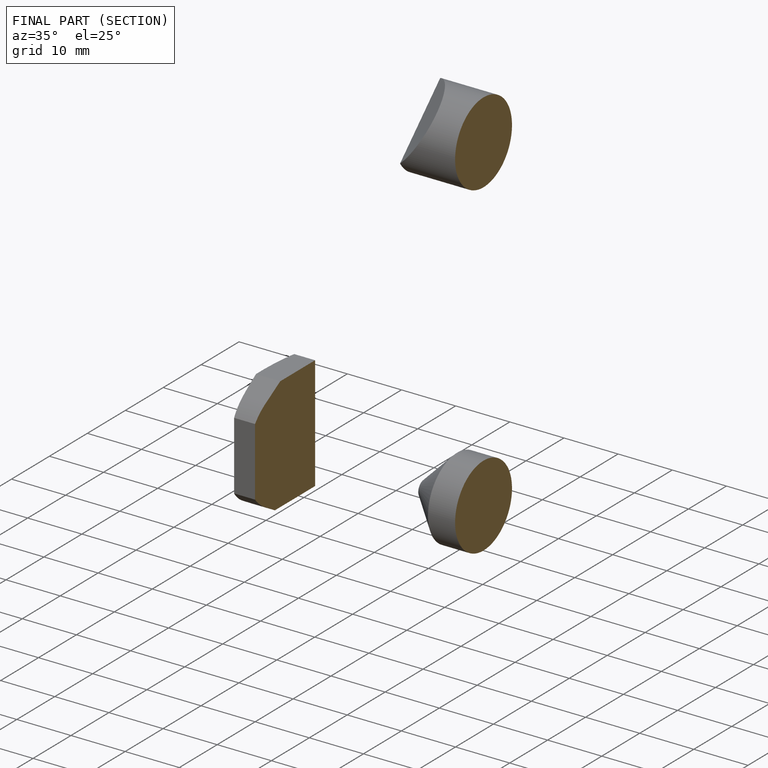
[diagram: finished part — half-section view (interior)]
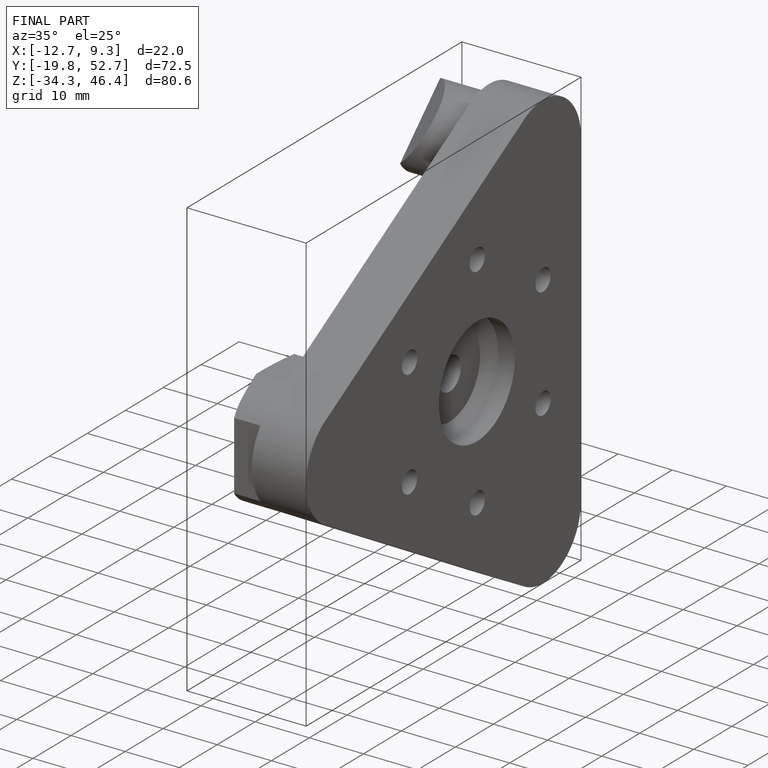
[diagram: finished part — iso view with bounding-box wireframe]
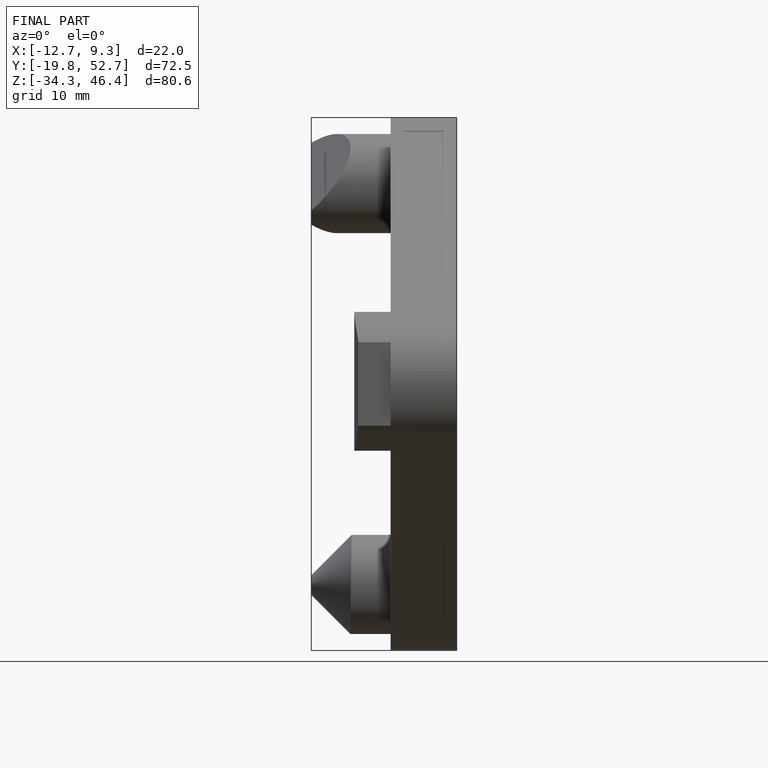
[diagram: finished part — front view with bounding-box wireframe]
